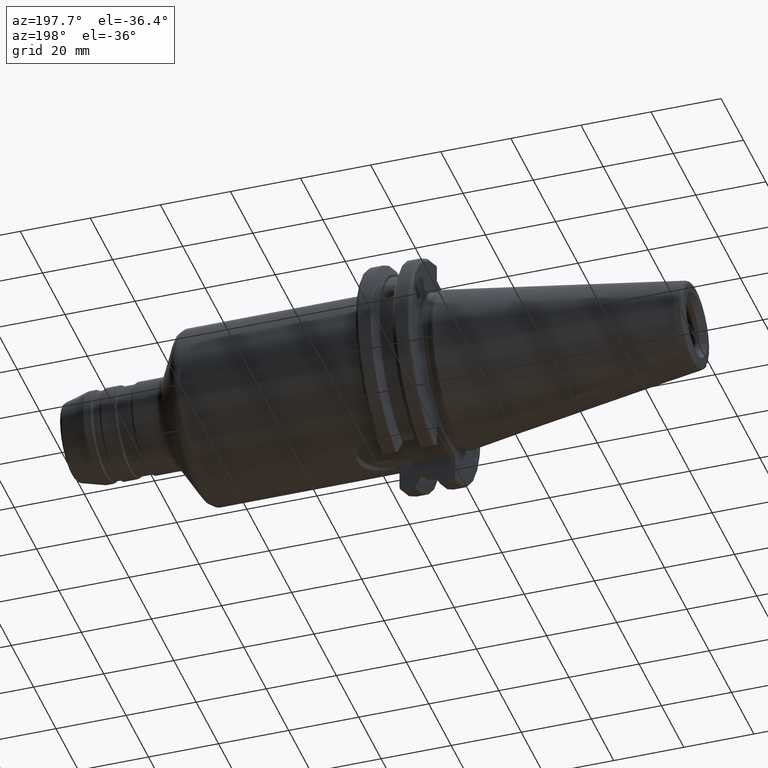
[diagram: clean part render]
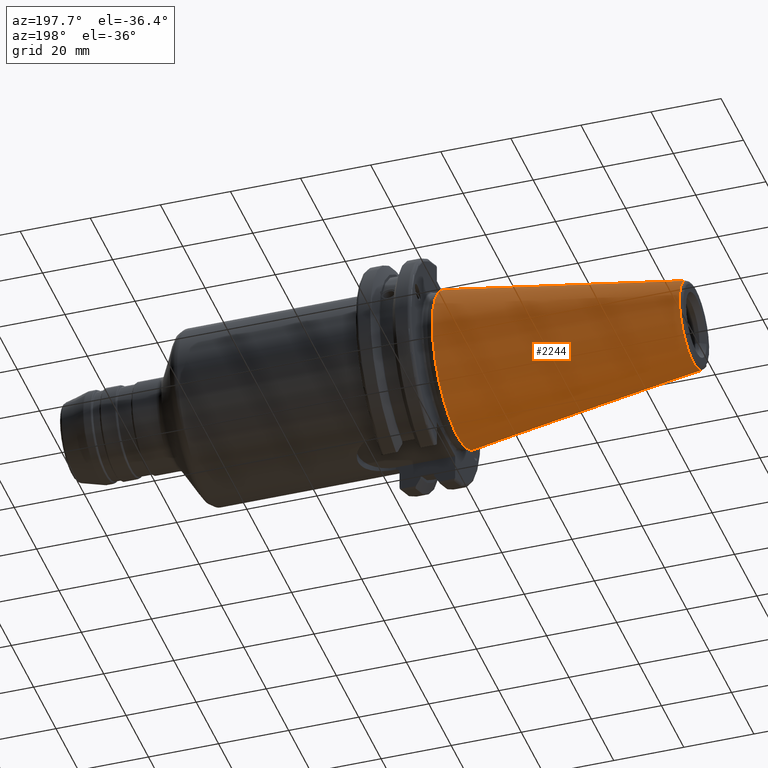
[diagram: same view with one face highlighted and labeled with its STEP entity id]
A machine part, auxiliary view. The second image highlights one B-rep face of the part: STEP entity #2244.
In plain terms, the highlighted conical surface has half-angle 8.297 deg.
Its self-contained STEP definition (entity closure, byte-faithful):
#119=CONICAL_SURFACE('',#2563,17.2484375,0.144812498238939);
#267=FACE_OUTER_BOUND('',#392,.T.);
#392=EDGE_LOOP('',(#1988,#1989,#1990,#1991,#1992,#1993,#1994));
#503=LINE('',#4359,#599);
#599=VECTOR('',#3246,17.2484375);
#772=CIRCLE('',#2554,12.3966635780937);
#773=CIRCLE('',#2555,12.3966635780937);
#777=CIRCLE('',#2559,12.3966635780937);
#780=CIRCLE('',#2564,22.225);
#781=CIRCLE('',#2565,22.225);
#1029=VERTEX_POINT('',#4338);
#1030=VERTEX_POINT('',#4339);
#1031=VERTEX_POINT('',#4341);
#1036=VERTEX_POINT('',#4355);
#1037=VERTEX_POINT('',#4356);
#1366=EDGE_CURVE('',#1029,#1030,#772,.T.);
#1367=EDGE_CURVE('',#1030,#1031,#773,.T.);
#1371=EDGE_CURVE('',#1031,#1029,#777,.T.);
#1374=EDGE_CURVE('',#1036,#1037,#780,.T.);
#1375=EDGE_CURVE('',#1037,#1036,#781,.T.);
#1376=EDGE_CURVE('',#1037,#1030,#503,.T.);
#1988=ORIENTED_EDGE('',*,*,#1374,.F.);
#1989=ORIENTED_EDGE('',*,*,#1375,.F.);
#1990=ORIENTED_EDGE('',*,*,#1376,.T.);
#1991=ORIENTED_EDGE('',*,*,#1366,.F.);
#1992=ORIENTED_EDGE('',*,*,#1371,.F.);
#1993=ORIENTED_EDGE('',*,*,#1367,.F.);
#1994=ORIENTED_EDGE('',*,*,#1376,.F.);
#2244=ADVANCED_FACE('',(#267),#119,.T.);
#2554=AXIS2_PLACEMENT_3D('',#4340,#3222,#3223);
#2555=AXIS2_PLACEMENT_3D('',#4342,#3224,#3225);
#2559=AXIS2_PLACEMENT_3D('',#4348,#3232,#3233);
#2563=AXIS2_PLACEMENT_3D('',#4354,#3240,#3241);
#2564=AXIS2_PLACEMENT_3D('',#4357,#3242,#3243);
#2565=AXIS2_PLACEMENT_3D('',#4358,#3244,#3245);
#3222=DIRECTION('center_axis',(-1.,0.,0.));
#3223=DIRECTION('ref_axis',(0.,-1.,3.06161699786838E-17));
#3224=DIRECTION('center_axis',(-1.,0.,0.));
#3225=DIRECTION('ref_axis',(0.,-1.,3.06161699786838E-17));
#3232=DIRECTION('center_axis',(-1.,0.,0.));
#3233=DIRECTION('ref_axis',(0.,-1.,3.06161699786838E-17));
#3240=DIRECTION('center_axis',(1.,0.,0.));
#3241=DIRECTION('ref_axis',(0.,1.,0.));
#3242=DIRECTION('center_axis',(1.,0.,0.));
#3243=DIRECTION('ref_axis',(0.,0.,-1.));
#3244=DIRECTION('center_axis',(1.,0.,0.));
#3245=DIRECTION('ref_axis',(0.,0.,-1.));
#3246=DIRECTION('',(-0.989532981063282,0.144306893071729,1.76724974695192E-17));
#4338=CARTESIAN_POINT('',(-67.3943068930717,12.3966635780937,-3.79538359275475E-15));
#4339=CARTESIAN_POINT('',(-67.3943068930718,-12.3966635780937,-1.5181534371019E-15));
#4340=CARTESIAN_POINT('Origin',(-67.3943068930717,0.,-1.89769179637738E-15));
#4341=CARTESIAN_POINT('',(-67.3943068930717,-1.5181534371019E-15,12.3966635780937));
#4342=CARTESIAN_POINT('Origin',(-67.3943068930717,0.,-1.89769179637738E-15));
#4348=CARTESIAN_POINT('Origin',(-67.3943068930717,0.,-1.89769179637738E-15));
#4354=CARTESIAN_POINT('Origin',(-34.125,0.,0.));
#4355=CARTESIAN_POINT('',(0.,22.225,0.));
#4356=CARTESIAN_POINT('',(0.,-22.225,-2.72177751110499E-15));
#4357=CARTESIAN_POINT('Origin',(0.,0.,0.));
#4358=CARTESIAN_POINT('Origin',(0.,0.,0.));
#4359=CARTESIAN_POINT('',(-34.125,-17.2484375,-2.11232437746682E-15));